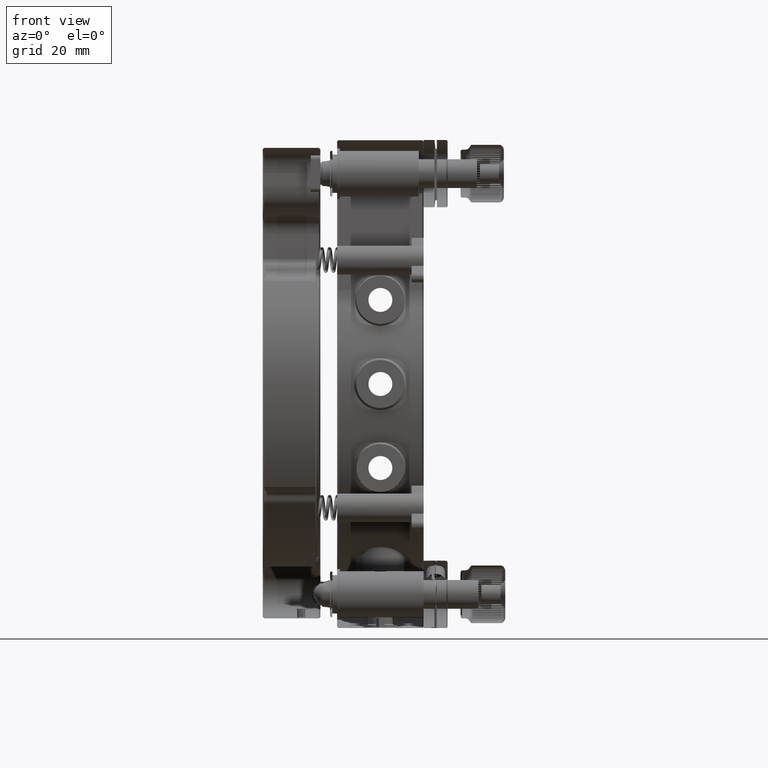
[diagram: clean part render]
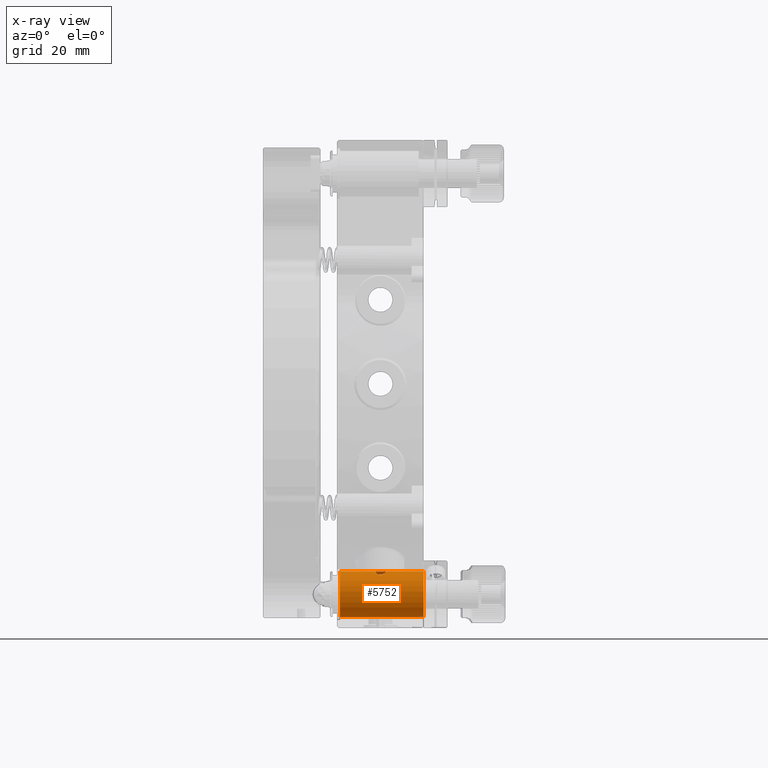
[diagram: x-ray — body ghosted, one internal face saturated and labeled with its STEP entity id]
A machine part, front view, then the same camera in x-ray: the body is ghosted and one INTERNAL B-rep face — a face not visible from any outside direction — is saturated and labeled: STEP entity #5752.
In plain terms, the highlighted cylindrical surface (bore or boss wall) has radius 4.8 mm, axis along (1, 0, 0).
Its self-contained STEP definition (entity closure, byte-faithful):
#766 = CARTESIAN_POINT ( 'NONE',  ( 0.5955648681984666570, -43.51935275993130858, -39.00821124994200062 ) ) ;
#1033 = CARTESIAN_POINT ( 'NONE',  ( 0.09178447153614487097, -43.36102587968623112, -39.02011486720558509 ) ) ;
#1294 = CARTESIAN_POINT ( 'NONE',  ( 0.6241564022617441809, -43.53225586816742521, -39.00746994601368556 ) ) ;
#1454 = CARTESIAN_POINT ( 'NONE',  ( 1.094062375240516971, -44.81158369819412002, -39.10592658667196986 ) ) ;
#1745 = CARTESIAN_POINT ( 'NONE',  ( -0.2591623236573521449, -46.33407257465258766, -39.72339859272909024 ) ) ;
#1847 = CARTESIAN_POINT ( 'NONE',  ( 0.3090632147860893353, -43.41023387486684726, -39.01585051415750627 ) ) ;
#1935 = AXIS2_PLACEMENT_3D ( 'NONE', #13369, #9028, #42068 ) ;
#2002 = CARTESIAN_POINT ( 'NONE',  ( -0.9397657162655548291, -45.53493881669761123, -39.32438156123244255 ) ) ;
#2031 = CIRCLE ( 'NONE', #49602, 4.799999999999998934 ) ;
#2264 = CARTESIAN_POINT ( 'NONE',  ( 1.012760989228327579, -45.27716657256188171, -39.23281084434707822 ) ) ;
#2818 = CARTESIAN_POINT ( 'NONE',  ( -1.145643923738958847, -44.12513711731100585, -39.00000000000000711 ) ) ;
#3860 = CARTESIAN_POINT ( 'NONE',  ( -0.9321855082088632560, -43.68429486032488995, -39.00116668471863335 ) ) ;
#3964 = EDGE_LOOP ( 'NONE', ( #34104 ) ) ;
#4768 = VERTEX_POINT ( 'NONE', #49707 ) ;
#4832 = CARTESIAN_POINT ( 'NONE',  ( -0.6115583545877120164, -43.52654261296325444, -39.00779503276654481 ) ) ;
#5272 = CARTESIAN_POINT ( 'NONE',  ( 1.021525822664586691, -45.23837520389417932, -39.22049801841849614 ) ) ;
#5528 = CARTESIAN_POINT ( 'NONE',  ( -0.8016364394293729045, -45.85804815030391524, -39.46186480901158689 ) ) ;
#5752 = ADVANCED_FACE ( 'NONE', ( #50182, #13117, #29627 ), #46119, .T. ) ;
#5796 = CARTESIAN_POINT ( 'NONE',  ( 0.7994591564994599775, -45.85476616512406878, -39.46170050482486147 ) ) ;
#5901 = CARTESIAN_POINT ( 'NONE',  ( 1.145643673738911072, -43.79999986232551379, -39.00000000000000711 ) ) ;
#6074 = CARTESIAN_POINT ( 'NONE',  ( 0.6896399764753452510, -46.01680044636644595, -39.54255580707842199 ) ) ;
#6329 = CARTESIAN_POINT ( 'NONE',  ( 1.145643673738911072, -43.79999986232551379, -39.00000000000000711 ) ) ;
#6502 = B_SPLINE_CURVE_WITH_KNOTS ( 'NONE', 3,
 ( #36649, #16091, #3860, #51130, #26523, #46805, #29761, #4832, #17328, #47319, #25725, #42740, #21377, #34908, #9435, #46257, #38146, #14062, #22181, #34095, #13250, #1033, #17586, #1847, #37875, #21916, #9708, #13785, #41942, #30561, #766, #38399, #50579, #10238, #1294, #33844, #38950, #18393, #43003, #50318, #5901 ),
 .UNSPECIFIED., .F., .F.,
 ( 4, 2, 1, 1, 1, 1, 2, 2, 2, 1, 1, 2, 2, 2, 2, 2, 1, 1, 1, 2, 2, 1, 1, 1, 1, 2, 4 ),
 ( 9.320810746366137609E-08, 0.1250000699986664743, 0.1875000583939440968, 0.2187500525915827831, 0.2343750496904020431, 0.2421875482398115897, 0.2460937975145185974, 0.2500000467892255496, 0.3125000351845445001, 0.3437500293822054465, 0.3593750264810346429, 0.3671875250304476035, 0.3750000235798605641, 0.5000000003704747620, 0.6249999771610889043, 0.6328124757105023646, 0.6406249742599160468, 0.6562499713587399697, 0.6874999655563848178, 0.7499999539516747360, 0.7539062032263792457, 0.7578124525010835333, 0.7656249510504918865, 0.7812499481493087039, 0.8124999423469430049, 0.8749999307422113848, 0.9999999075327481446 ),
 .UNSPECIFIED. ) ;
#9028 = DIRECTION ( 'NONE',  ( 1.000000000000000000, 0.000000000000000000, 0.000000000000000000 ) ) ;
#9326 = CARTESIAN_POINT ( 'NONE',  ( -0.3522057582245896046, -46.29514661615478133, -39.69947413600495167 ) ) ;
#9435 = CARTESIAN_POINT ( 'NONE',  ( -0.3845467786978192248, -43.43436546956800726, -39.01393572199106785 ) ) ;
#9603 = CARTESIAN_POINT ( 'NONE',  ( -0.6347818592678717842, -46.08175490659679241, -39.57697470826192188 ) ) ;
#9708 = CARTESIAN_POINT ( 'NONE',  ( 0.3399409698244698075, -43.41968603813677419, -39.01508809897317320 ) ) ;
#9863 = CARTESIAN_POINT ( 'NONE',  ( 0.9964969340804442632, -45.34270012139663208, -39.25465623034313722 ) ) ;
#10130 = CARTESIAN_POINT ( 'NONE',  ( -0.1322205637859034111, -46.36828264364372387, -39.74484459301854855 ) ) ;
#10238 = CARTESIAN_POINT ( 'NONE',  ( 0.6080230916848651246, -43.52494506440988431, -39.00788645809149102 ) ) ;
#10413 = CARTESIAN_POINT ( 'NONE',  ( 0.4739336261992599941, -46.22457400526504756, -39.65728189154788907 ) ) ;
#13117 = FACE_BOUND ( 'NONE', #48894, .T. ) ;
#13250 = CARTESIAN_POINT ( 'NONE',  ( -0.09861077797841394377, -43.36182505451116498, -39.02004154012191606 ) ) ;
#13369 = CARTESIAN_POINT ( 'NONE',  ( -9.000000000000001776, -43.79999999999999716, -43.79999999999999716 ) ) ;
#13530 = CARTESIAN_POINT ( 'NONE',  ( -8.400000000000000355, -43.79999999999999716, -43.79999999999999716 ) ) ;
#13674 = CARTESIAN_POINT ( 'NONE',  ( 0.4091830824797494937, -46.26478012329064171, -39.68115574964166115 ) ) ;
#13785 = CARTESIAN_POINT ( 'NONE',  ( 0.3789233605554980233, -43.43241434753504393, -39.01408523544342444 ) ) ;
#13955 = CARTESIAN_POINT ( 'NONE',  ( -0.9739564842627952412, -45.42562086790923104, -39.28359019978471878 ) ) ;
#14062 = CARTESIAN_POINT ( 'NONE',  ( -0.3190509754322803926, -43.41323909364393074, -39.01560675529588451 ) ) ;
#14210 = CARTESIAN_POINT ( 'NONE',  ( 0.2605324079636485712, -46.34458490812096443, -39.72926653756178439 ) ) ;
#14238 = EDGE_LOOP ( 'NONE', ( #29513 ) ) ;
#14473 = CARTESIAN_POINT ( 'NONE',  ( -0.06725230169424220583, -46.37630106432470711, -39.74997866332948604 ) ) ;
#14763 = CARTESIAN_POINT ( 'NONE',  ( 0.3903074779061783128, -46.27539890347927098, -39.68752837583300419 ) ) ;
#15562 = CARTESIAN_POINT ( 'NONE',  ( -1.132755355368224581, -44.41993203441294469, -39.03280349479054223 ) ) ;
#16091 = CARTESIAN_POINT ( 'NONE',  ( -1.033886601206067457, -43.73845548508546699, -39.00000000176522974 ) ) ;
#16094 = EDGE_CURVE ( 'NONE', #24048, #24048, #2031, .T. ) ;
#17328 = CARTESIAN_POINT ( 'NONE',  ( -0.6047637387309933166, -43.52348036525243913, -39.00797141887695574 ) ) ;
#17586 = CARTESIAN_POINT ( 'NONE',  ( 0.1936808617936017218, -43.37662294835951116, -39.01860278994363540 ) ) ;
#17749 = CARTESIAN_POINT ( 'NONE',  ( 0.9941073835854320473, -45.35189479595308626, -39.25779426017966500 ) ) ;
#18016 = CARTESIAN_POINT ( 'NONE',  ( -0.9561129866615801776, -45.48569333940726267, -39.30547763788478477 ) ) ;
#18294 = CARTESIAN_POINT ( 'NONE',  ( -0.5598204733975639114, -46.15616839261488025, -39.61801383039968272 ) ) ;
#18393 = CARTESIAN_POINT ( 'NONE',  ( 0.7921733226471354694, -43.61288124315199610, -39.00359091737774975 ) ) ;
#18546 = CARTESIAN_POINT ( 'NONE',  ( 0.5111461933531176172, -46.19666262139158164, -39.64108863672107930 ) ) ;
#18804 = CARTESIAN_POINT ( 'NONE',  ( 1.132748536614348378, -44.42005340332787711, -39.03281624754386314 ) ) ;
#19066 = CARTESIAN_POINT ( 'NONE',  ( 1.145643673738911072, -43.79999986232551379, -39.00000000000000711 ) ) ;
#19344 = CARTESIAN_POINT ( 'NONE',  ( -1.145643673738910184, -43.79999986232551379, -39.00000000000000711 ) ) ;
#19689 = AXIS2_PLACEMENT_3D ( 'NONE', #29863, #30129, #34195 ) ;
#21377 = CARTESIAN_POINT ( 'NONE',  ( -0.4911626748776681262, -43.47428227083992880, -39.01102914866363136 ) ) ;
#21916 = CARTESIAN_POINT ( 'NONE',  ( 0.3236576975313331106, -43.41464862351097054, -39.01549302435901012 ) ) ;
#22079 = CARTESIAN_POINT ( 'NONE',  ( 0.6781896896396559793, -46.03113365741587160, -39.55004734713357806 ) ) ;
#22181 = CARTESIAN_POINT ( 'NONE',  ( -0.3152804399628901244, -43.41209141222893209, -39.01569953198610108 ) ) ;
#22206 = DIRECTION ( 'NONE',  ( 1.000000000000000000, 0.000000000000000000, 0.000000000000000000 ) ) ;
#22343 = CARTESIAN_POINT ( 'NONE',  ( 0.6812533574915314860, -46.02732951034867170, -39.54805473610228717 ) ) ;
#22621 = CARTESIAN_POINT ( 'NONE',  ( -0.8810634394227044863, -45.69023116446994948, -39.38743034888604910 ) ) ;
#22875 = CARTESIAN_POINT ( 'NONE',  ( 1.048928520304383216, -45.10442964589856985, -39.18026674070423354 ) ) ;
#24048 = VERTEX_POINT ( 'NONE', #32427 ) ;
#24905 = CIRCLE ( 'NONE', #19689, 4.799999999999998934 ) ;
#25725 = CARTESIAN_POINT ( 'NONE',  ( -0.5991342792381426641, -43.52095017664295540, -39.00811796255040775 ) ) ;
#25893 = CARTESIAN_POINT ( 'NONE',  ( -0.3694079464254772516, -46.28654139935066780, -39.69425023168314937 ) ) ;
#26158 = CARTESIAN_POINT ( 'NONE',  ( -0.6513966628624963118, -46.06290769095442528, -39.56688046003167614 ) ) ;
#26420 = CARTESIAN_POINT ( 'NONE',  ( 0.9925080533463440657, -45.35800868324437829, -39.25988773448296598 ) ) ;
#26523 = CARTESIAN_POINT ( 'NONE',  ( -0.7297549952462484280, -43.58186279367069460, -39.00489070990285967 ) ) ;
#26689 = CARTESIAN_POINT ( 'NONE',  ( -0.9056673836325835891, -45.63047697256963176, -39.36220251911228019 ) ) ;
#26925 = EDGE_CURVE ( 'NONE', #4768, #4768, #24905, .T. ) ;
#26965 = CARTESIAN_POINT ( 'NONE',  ( -0.4362510524317064209, -46.25090339664647843, -39.67275137751482106 ) ) ;
#29513 = ORIENTED_EDGE ( 'NONE', *, *, #16094, .T. ) ;
#29627 = FACE_OUTER_BOUND ( 'NONE', #14238, .T. ) ;
#29761 = CARTESIAN_POINT ( 'NONE',  ( -0.6276186843962219264, -43.53383934568269353, -39.00738175777755146 ) ) ;
#29863 = CARTESIAN_POINT ( 'NONE',  ( 9.000000000000001776, -43.79999999999999716, -43.79999999999999716 ) ) ;
#30129 = DIRECTION ( 'NONE',  ( -1.000000000000000000, -0.000000000000000000, -0.000000000000000000 ) ) ;
#30190 = CARTESIAN_POINT ( 'NONE',  ( 0.1316455036632367681, -46.37639997477718623, -39.75004158341400284 ) ) ;
#30561 = CARTESIAN_POINT ( 'NONE',  ( 0.5378306506094036044, -43.49362373274152560, -39.00972631165284099 ) ) ;
#30719 = CARTESIAN_POINT ( 'NONE',  ( -0.9861973519994092774, -45.38162911610272943, -39.26806095384252870 ) ) ;
#30992 = CARTESIAN_POINT ( 'NONE',  ( -0.6623941611621947390, -46.05014706782923639, -39.56008367646462176 ) ) ;
#32427 = CARTESIAN_POINT ( 'NONE',  ( -8.400000000000000355, -43.79999999999999716, -48.59999999999999432 ) ) ;
#33000 = ORIENTED_EDGE ( 'NONE', *, *, #33799, .T. ) ;
#33799 = EDGE_CURVE ( 'NONE', #49911, #49778, #6502, .T. ) ;
#33844 = CARTESIAN_POINT ( 'NONE',  ( 0.6572600154803436290, -43.54749272463485710, -39.00663187181385894 ) ) ;
#34095 = CARTESIAN_POINT ( 'NONE',  ( -0.2002119389037983477, -43.37803178763851975, -39.01847542638093813 ) ) ;
#34104 = ORIENTED_EDGE ( 'NONE', *, *, #26925, .T. ) ;
#34195 = DIRECTION ( 'NONE',  ( 0.000000000000000000, 0.000000000000000000, -1.000000000000000000 ) ) ;
#34253 = CARTESIAN_POINT ( 'NONE',  ( 0.9920870601779021580, -45.35961699425241989, -39.26043864417008677 ) ) ;
#34531 = CARTESIAN_POINT ( 'NONE',  ( 0.7540649468663792598, -45.92745767457675043, -39.49713462112998030 ) ) ;
#34808 = CARTESIAN_POINT ( 'NONE',  ( -0.7411982162822252640, -45.95466638205624577, -39.50976783483911703 ) ) ;
#34908 = CARTESIAN_POINT ( 'NONE',  ( -0.4193473663472703783, -43.44694521216359817, -39.01299302483320020 ) ) ;
#35066 = CARTESIAN_POINT ( 'NONE',  ( -0.5951840911982063664, -46.12368792621019509, -39.59979545934722012 ) ) ;
#35329 = CARTESIAN_POINT ( 'NONE',  ( 1.145643923738958403, -44.12520007045399240, -39.00000000000000000 ) ) ;
#36128 = CARTESIAN_POINT ( 'NONE',  ( -1.042535376773083833, -45.16920120847051123, -39.19482367720249982 ) ) ;
#36403 = CARTESIAN_POINT ( 'NONE',  ( -1.081201081885285742, -44.94186898005111175, -39.13024481594913340 ) ) ;
#36649 = CARTESIAN_POINT ( 'NONE',  ( -1.145643673738910184, -43.79999986232551379, -39.00000000000000711 ) ) ;
#37875 = CARTESIAN_POINT ( 'NONE',  ( 0.3128962863562613772, -43.41138312003816679, -39.01575715458253768 ) ) ;
#38146 = CARTESIAN_POINT ( 'NONE',  ( -0.3297286158023143288, -43.41652613184229637, -39.01534217408435268 ) ) ;
#38298 = CARTESIAN_POINT ( 'NONE',  ( 0.6294915305517054804, -46.09015531901037122, -39.58114881254732609 ) ) ;
#38399 = CARTESIAN_POINT ( 'NONE',  ( 0.5966686896668833562, -43.51984755519794845, -39.00818242817896930 ) ) ;
#38563 = CARTESIAN_POINT ( 'NONE',  ( 0.9528902563471984832, -45.50751443811982710, -39.31141382176928545 ) ) ;
#38691 = DIRECTION ( 'NONE',  ( 0.000000000000000000, 0.000000000000000000, -1.000000000000000000 ) ) ;
#38837 = CARTESIAN_POINT ( 'NONE',  ( 0.3959877054681493203, -46.27225965461914825, -39.68564085002038411 ) ) ;
#38950 = CARTESIAN_POINT ( 'NONE',  ( 0.7268152101769002060, -43.58042817029719629, -39.00495567529791430 ) ) ;
#39110 = CARTESIAN_POINT ( 'NONE',  ( -0.4871963394750392085, -46.21661695494132971, -39.65245690059366268 ) ) ;
#39373 = CARTESIAN_POINT ( 'NONE',  ( 0.9073757041348688990, -45.63473161060695560, -39.36279892688212101 ) ) ;
#39640 = CARTESIAN_POINT ( 'NONE',  ( -0.9901755677669747957, -45.36683039022139496, -39.26292463471252603 ) ) ;
#39697 = B_SPLINE_CURVE_WITH_KNOTS ( 'NONE', 3,
 ( #6329, #35329, #18804, #1454, #42379, #22875, #43168, #5272, #2264, #46958, #9863, #17749, #26420, #34253, #38563, #39373, #42903, #5796, #34531, #51820, #51547, #6074, #22343, #22079, #38298, #51026, #18546, #10413, #50747, #13674, #38837, #14763, #14210, #30190, #14473, #10130, #46697, #1745, #43434, #46420, #9326, #25893, #26965, #39110, #18294, #35066, #9603, #26158, #30992, #42634, #34808, #5528, #22621, #26689, #2002, #18016, #13955, #51283, #30719, #47217, #39640, #36128, #36403, #15562, #2818, #19344 ),
 .UNSPECIFIED., .F., .F.,
 ( 4, 2, 2, 2, 1, 1, 1, 2, 2, 2, 2, 1, 1, 2, 2, 2, 1, 1, 2, 2, 2, 2, 2, 2, 2, 2, 1, 1, 2, 2, 2, 2, 1, 1, 1, 2, 2, 2, 4 ),
 ( 0.000000000000000000, 0.1249999999998354649, 0.1874999999997550848, 0.2187499999997131739, 0.2343749999996922184, 0.2421874999996793121, 0.2460937499996728450, 0.2480468749996714850, 0.2499999999996700972, 0.3124999999996367350, 0.3437499999996193045, 0.3593749999996111999, 0.3671874999996064814, 0.3710937499996048161, 0.3749999999996030953, 0.4062499999995978772, 0.4218749999995962119, 0.4296874999995954347, 0.4335937499995945466, 0.4374999999995936029, 0.4999999999995996536, 0.5312499999996026512, 0.5468749999996043165, 0.5546874999996057598, 0.5624999999996070921, 0.5937499999996085354, 0.6093749999996108668, 0.6171874999996130873, 0.6210937499996130873, 0.6249999999996131983, 0.6874999999996328492, 0.7187499999996433964, 0.7343749999996481703, 0.7421874999996515010, 0.7460937499996526112, 0.7480468749996549427, 0.7499999999996572742, 0.8749999999998285816, 1.000000000000000000 ),
 .UNSPECIFIED. ) ;
#41942 = CARTESIAN_POINT ( 'NONE',  ( 0.4608404968723752160, -43.46177018200015141, -39.01187416851293932 ) ) ;
#42068 = DIRECTION ( 'NONE',  ( 0.000000000000000000, 0.000000000000000000, -1.000000000000000000 ) ) ;
#42379 = CARTESIAN_POINT ( 'NONE',  ( 1.077943141334755550, -44.93373118337958516, -39.13432299056146491 ) ) ;
#42634 = CARTESIAN_POINT ( 'NONE',  ( -0.6690277837564794217, -46.04224375009761872, -39.55590093559723641 ) ) ;
#42740 = CARTESIAN_POINT ( 'NONE',  ( -0.5419917248732426529, -43.49541048017774614, -39.00961327241822119 ) ) ;
#42903 = CARTESIAN_POINT ( 'NONE',  ( 0.8278455803425420756, -45.80262053115980336, -39.43728761322307008 ) ) ;
#43003 = CARTESIAN_POINT ( 'NONE',  ( 0.9305420464661358082, -43.68342106018714333, -39.00118520685633428 ) ) ;
#43168 = CARTESIAN_POINT ( 'NONE',  ( 1.038451018265637460, -45.15924568977650466, -39.19614317547010529 ) ) ;
#43434 = CARTESIAN_POINT ( 'NONE',  ( -0.3058920106848496134, -46.31589527234377357, -39.71217396524257737 ) ) ;
#43675 = CARTESIAN_POINT ( 'NONE',  ( -1.145643673738910184, -43.79999986232551379, -39.00000000000000711 ) ) ;
#43985 = EDGE_CURVE ( 'NONE', #49778, #49911, #39697, .T. ) ;
#46119 = CYLINDRICAL_SURFACE ( 'NONE', #1935, 4.799999999999998934 ) ;
#46257 = CARTESIAN_POINT ( 'NONE',  ( -0.3458834596843338716, -43.42159255301012877, -39.01493692519180456 ) ) ;
#46420 = CARTESIAN_POINT ( 'NONE',  ( -0.3213853851297988062, -46.30932366458340965, -39.70813444212022603 ) ) ;
#46513 = ORIENTED_EDGE ( 'NONE', *, *, #43985, .T. ) ;
#46697 = CARTESIAN_POINT ( 'NONE',  ( -0.2276764473821477064, -46.34414140818533667, -39.72968861470530300 ) ) ;
#46805 = CARTESIAN_POINT ( 'NONE',  ( -0.6605642485845174550, -43.54903885928457896, -39.00655075085959567 ) ) ;
#46958 = CARTESIAN_POINT ( 'NONE',  ( 1.002006437856826748, -45.32107880731525995, -39.24735035601133859 ) ) ;
#47217 = CARTESIAN_POINT ( 'NONE',  ( -0.9886001947685348901, -45.37273317349231405, -39.26496609230014201 ) ) ;
#47319 = CARTESIAN_POINT ( 'NONE',  ( -0.6002536354115421968, -43.52145329304242694, -39.00808881940157136 ) ) ;
#48894 = EDGE_LOOP ( 'NONE', ( #33000, #46513 ) ) ;
#49602 = AXIS2_PLACEMENT_3D ( 'NONE', #13530, #22206, #38691 ) ;
#49707 = CARTESIAN_POINT ( 'NONE',  ( 9.000000000000001776, -43.79999999999999716, -48.59999999999999432 ) ) ;
#49778 = VERTEX_POINT ( 'NONE', #19066 ) ;
#49911 = VERTEX_POINT ( 'NONE', #43675 ) ;
#50182 = FACE_OUTER_BOUND ( 'NONE', #3964, .T. ) ;
#50318 = CARTESIAN_POINT ( 'NONE',  ( 1.032991194183511929, -43.73796238638358602, -39.00000000177938375 ) ) ;
#50579 = CARTESIAN_POINT ( 'NONE',  ( 0.6011984934445784301, -43.52187777174594885, -39.00806416360856588 ) ) ;
#50747 = CARTESIAN_POINT ( 'NONE',  ( 0.4288574698031025201, -46.25328989542295233, -39.67428643249029108 ) ) ;
#51026 = CARTESIAN_POINT ( 'NONE',  ( 0.5836724765560747930, -46.13634930237295606, -39.60671802392852925 ) ) ;
#51130 = CARTESIAN_POINT ( 'NONE',  ( -0.7947178380165413891, -43.61415707294739263, -39.00354197107228771 ) ) ;
#51283 = CARTESIAN_POINT ( 'NONE',  ( -0.9825711535982081246, -45.39492576253383760, -39.27270881735043417 ) ) ;
#51547 = CARTESIAN_POINT ( 'NONE',  ( 0.7021319495176754355, -46.00083963789020913, -39.53425739682527507 ) ) ;
#51820 = CARTESIAN_POINT ( 'NONE',  ( 0.7306641985827239116, -45.96242183334656772, -39.51455669710653495 ) ) ;